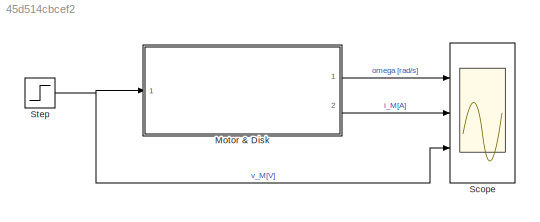
MODEL slx_45d514cbcef2
KIND model
CONFIG AbsTol = auto
CONFIG EnableMultiTasking = off
CONFIG FixedStep = 0.05
CONFIG MaxStep = auto
CONFIG MinStep = auto
CONFIG RelTol = 1e-3
CONFIG SampleTimeConstraint = Unconstrained
CONFIG SolverName = ode4
CONFIG StartTime = 0.0
CONFIG StopTime = 10.0
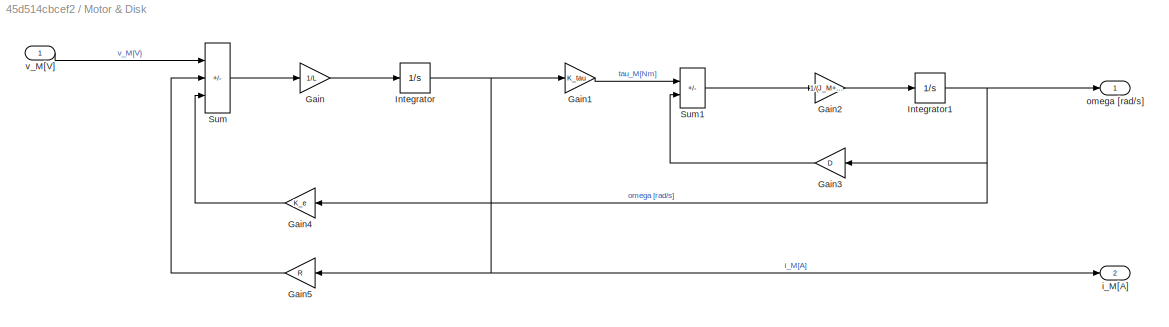
BLOCK [SubSystem] Motor & Disk
  Ports = [1, 2]
  RequestExecContextInheritance = off
BLOCK [Gain] Motor & Disk/Gain
  Gain = 1/L
BLOCK [Gain] Motor & Disk/Gain1
  Gain = K_tau
BLOCK [Gain] Motor & Disk/Gain2
  Gain = 1/(J_M+J_I)
BLOCK [Gain] Motor & Disk/Gain3
  Gain = D
BLOCK [Gain] Motor & Disk/Gain4
  Gain = K_e
BLOCK [Gain] Motor & Disk/Gain5
  Gain = R
BLOCK [Integrator] Motor & Disk/Integrator
  Ports = [1, 1]
BLOCK [Integrator] Motor & Disk/Integrator1
  Ports = [1, 1]
BLOCK [Sum] Motor & Disk/Sum
  IconShape = rectangular
  Inputs = +--
  Ports = [3, 1]
BLOCK [Sum] Motor & Disk/Sum1
  IconShape = rectangular
  Inputs = +-
  Ports = [2, 1]
BLOCK [Outport] Motor & Disk/i_M[A]
  Port = 2
BLOCK [Outport] Motor & Disk/omega [rad//s] 
BLOCK [Inport] Motor & Disk/v_M[V]
BLOCK [Scope] Scope
  Floating = off
  NumInputPorts = 3
  Ports = [3]
  ScopeSpecificationString = Simulink.scopes.TimeScopeBlockCfg('CurrentConfiguration', extmgr.ConfigurationSet(extmgr.Configuration('Core','General UI',true),extmgr.Configuration('Core','Source UI',true),extmgr.Configuration('Sources','WiredSimulink',true),extmgr.Configuration('Visuals','Time Domain',true,'SerializedDisplays',{struct('MinYLimReal','-39.01727','MaxYLimReal','351.15541','YLabelReal','','MinYLimMag','0.00000','M...<+2698ch>
BLOCK [Step] Step
  After = 24
  SampleTime = 0
LINE Motor & Disk/Gain1:1 -> Motor & Disk/Sum1:1
LINE Motor & Disk/Gain2:1 -> Motor & Disk/Integrator1:1
LINE Motor & Disk/Gain3:1 -> Motor & Disk/Sum1:2
LINE Motor & Disk/Gain4:1 -> Motor & Disk/Sum:3
LINE Motor & Disk/Gain5:1 -> Motor & Disk/Sum:2
LINE Motor & Disk/Gain:1 -> Motor & Disk/Integrator:1
NET Motor & Disk/Integrator1:1 -> Motor & Disk/Gain3:1, Motor & Disk/Gain4:1, Motor & Disk/omega [rad//s] :1
NET Motor & Disk/Integrator:1 -> Motor & Disk/Gain1:1, Motor & Disk/Gain5:1, Motor & Disk/i_M[A]:1
LINE Motor & Disk/Sum1:1 -> Motor & Disk/Gain2:1
LINE Motor & Disk/Sum:1 -> Motor & Disk/Gain:1
LINE Motor & Disk/v_M[V]:1 -> Motor & Disk/Sum:1
LINE Motor & Disk:1 -> Scope:1
LINE Motor & Disk:2 -> Scope:2
NET Step:1 -> Motor & Disk:1, Scope:3
note: NET lines group one-source signal fan-out (src -> all destinations, sorted); 1:1 wires keep LINE
